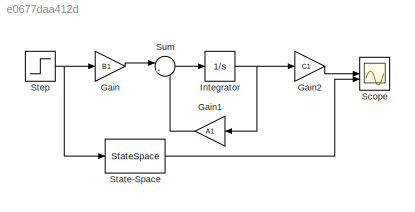
MODEL slx_e0677daa412d
KIND model
CONFIG AbsTol = auto
CONFIG EnableMultiTasking = off
CONFIG FixedStep = auto
CONFIG MaxStep = auto
CONFIG MinStep = auto
CONFIG RelTol = 1e-3
CONFIG SampleTimeConstraint = Unconstrained
CONFIG SolverName = ode4
CONFIG StartTime = 0.0
CONFIG StopTime = 0.015
BLOCK [Gain] Gain
  Gain = B1
  Multiplication = Matrix(K*u)
BLOCK [Gain] Gain1
  Gain = A1
  Multiplication = Matrix(K*u)
  NameLocation = top
BLOCK [Gain] Gain2
  Gain = C1
  Multiplication = Matrix(K*u)
BLOCK [Integrator] Integrator
BLOCK [Scope] Scope
  Floating = off
  NumInputPorts = 2
  ScopeSpecificationString = Simulink.scopes.TimeScopeBlockCfg('CurrentConfiguration', extmgr.ConfigurationSet(extmgr.Configuration('Core','General UI',true),extmgr.Configuration('Core','Source UI',true),extmgr.Configuration('Sources','WiredSimulink',true),extmgr.Configuration('Visuals','Time Domain',true,'SerializedDisplays',{struct('MinYLimReal','-0.1952','MaxYLimReal','1.74163','YLabelReal','','MinYLimMag','0.00000','MaxYL...<+2186ch>
BLOCK [StateSpace] State-Space
  A = A1
  B = B1
  C = C1
  D = [0; 0]
  InitialCondition = 0
BLOCK [Step] Step
  SampleTime = 0
  Time = 0.01
BLOCK [Sum] Sum
  Inputs = |++
LINE Gain1:1 -> Sum:2
LINE Gain2:1 -> Scope:1
LINE Gain:1 -> Sum:1
NET Integrator:1 -> Gain1:1, Gain2:1
LINE State-Space:1 -> Scope:2
NET Step:1 -> Gain:1, State-Space:1
LINE Sum:1 -> Integrator:1
note: NET lines group one-source signal fan-out (src -> all destinations, sorted); 1:1 wires keep LINE
